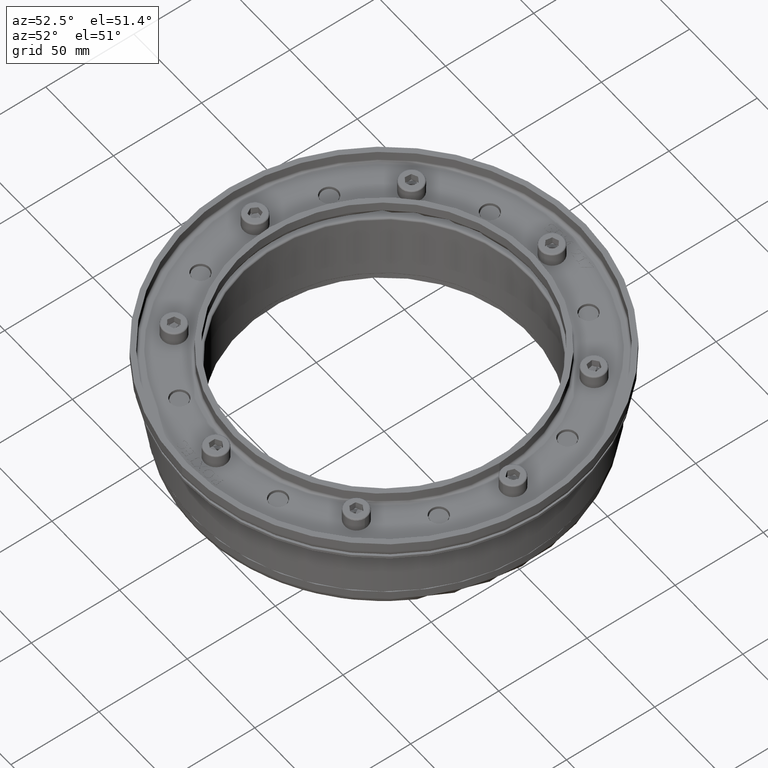
[diagram: clean part render]
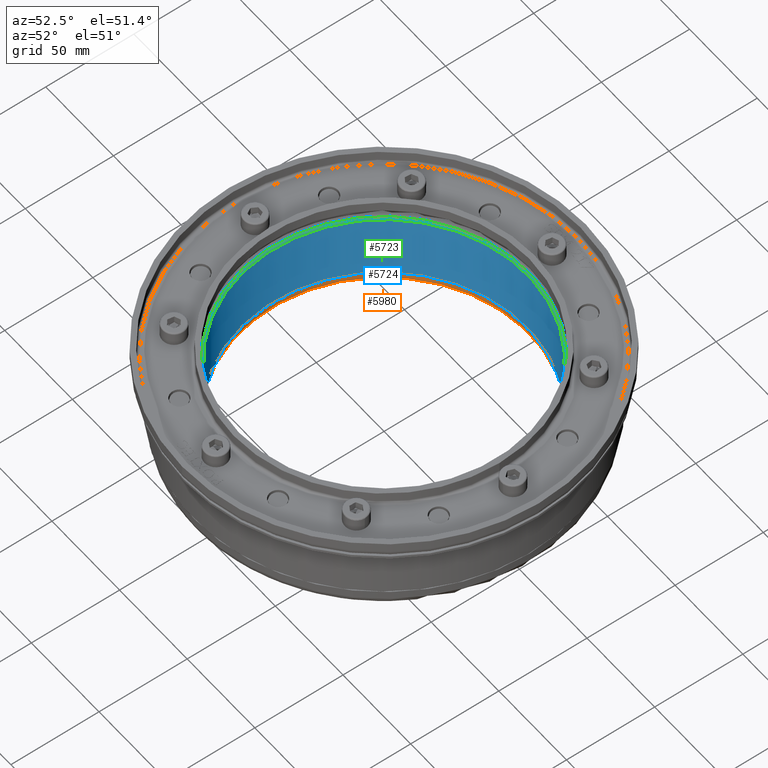
[diagram: same view with three faces highlighted in distinct colors, each labeled with its STEP entity id]
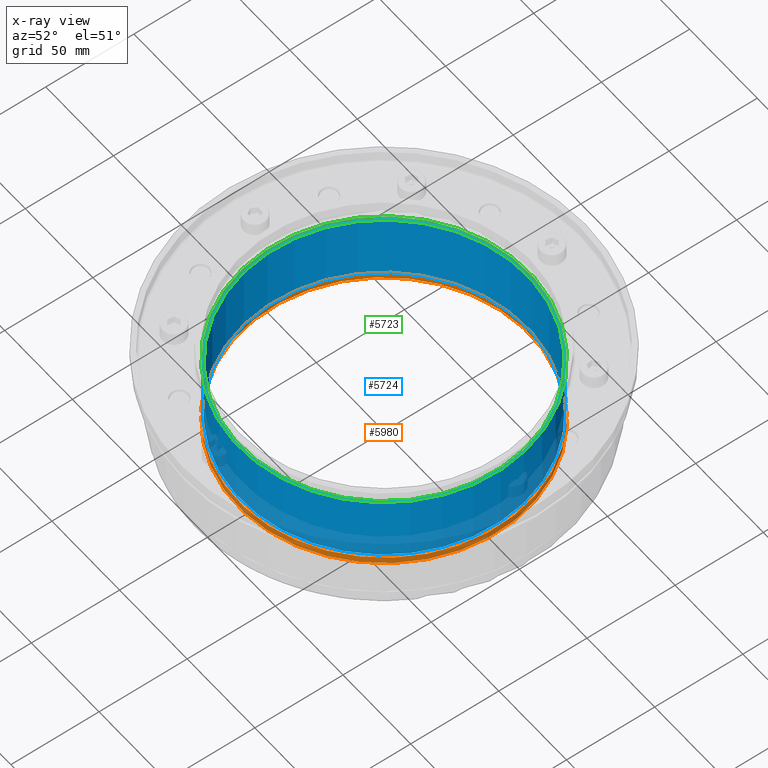
[diagram: x-ray of the same camera — body ghosted, the three highlighted faces saturated]
A machine part, auxiliary view with three faces highlighted in distinct colors.
The next image is the same camera in x-ray (body ghosted, the three faces saturated) — at least one of them is partly hidden behind the body in this view.
Their STEP definitions:

[orange] entity #5980 — the highlighted cylindrical surface (bore or boss wall) has radius 82.3 mm, axis along (0, 0, 1).
#616=CYLINDRICAL_SURFACE('',#6567,82.3);
#915=FACE_OUTER_BOUND('',#1325,.T.);
#1325=EDGE_LOOP('',(#5579,#5580,#5581,#5582));
#1783=LINE('',#10703,#2240);
#2240=VECTOR('',#7973,88.3);
#2480=CIRCLE('',#6555,82.3);
#2487=CIRCLE('',#6566,82.3);
#3053=VERTEX_POINT('',#10681);
#3059=VERTEX_POINT('',#10700);
#3896=EDGE_CURVE('',#3053,#3053,#2480,.F.);
#3905=EDGE_CURVE('',#3059,#3059,#2487,.T.);
#3906=EDGE_CURVE('',#3059,#3053,#1783,.T.);
#5579=ORIENTED_EDGE('',*,*,#3905,.T.);
#5580=ORIENTED_EDGE('',*,*,#3906,.T.);
#5581=ORIENTED_EDGE('',*,*,#3896,.F.);
#5582=ORIENTED_EDGE('',*,*,#3906,.F.);
#5980=ADVANCED_FACE('',(#915),#616,.F.);
#6555=AXIS2_PLACEMENT_3D('',#10682,#7945,#7946);
#6566=AXIS2_PLACEMENT_3D('',#10701,#7969,#7970);
#6567=AXIS2_PLACEMENT_3D('',#10702,#7971,#7972);
#7945=DIRECTION('center_axis',(3.48336438347503E-16,-1.,0.));
#7946=DIRECTION('ref_axis',(-1.,-3.51989990342365E-16,0.));
#7969=DIRECTION('center_axis',(-3.48336438347503E-16,1.,0.));
#7970=DIRECTION('ref_axis',(-1.,-3.51989990342365E-16,0.));
#7971=DIRECTION('center_axis',(-3.48336438347503E-16,1.,0.));
#7972=DIRECTION('ref_axis',(-1.,-3.51989990342365E-16,0.));
#7973=DIRECTION('',(3.48336438347503E-16,-1.,0.));
#10681=CARTESIAN_POINT('',(130.85,-3.99999999999994,1.00788431569827E-14));
#10682=CARTESIAN_POINT('Origin',(48.55,-3.99999999999996,0.));
#10700=CARTESIAN_POINT('',(130.85,6.1997911187775E-14,-1.00788431569827E-14));
#10701=CARTESIAN_POINT('Origin',(48.55,3.30291349825984E-14,0.));
#10702=CARTESIAN_POINT('Origin',(48.55,-1.99999999999997,0.));
#10703=CARTESIAN_POINT('',(130.85,-1.99999999999994,-1.00788431569827E-14));

[blue] entity #5724 — the highlighted cylindrical surface (bore or boss wall) has radius 81.3 mm, axis along (0, -0, 1).
#570=CYLINDRICAL_SURFACE('',#6263,81.3);
#659=FACE_OUTER_BOUND('',#981,.T.);
#981=EDGE_LOOP('',(#4196,#4197,#4198,#4199,#4200));
#1377=LINE('',#8381,#1834);
#1834=VECTOR('',#6961,81.3);
#2368=CIRCLE('',#6262,81.3);
#2369=CIRCLE('',#6264,81.3);
#2370=CIRCLE('',#6265,81.3);
#2612=VERTEX_POINT('',#8374);
#2613=VERTEX_POINT('',#8378);
#2614=VERTEX_POINT('',#8379);
#3234=EDGE_CURVE('',#2612,#2612,#2368,.T.);
#3235=EDGE_CURVE('',#2613,#2614,#2369,.T.);
#3236=EDGE_CURVE('',#2613,#2612,#1377,.T.);
#3237=EDGE_CURVE('',#2614,#2613,#2370,.T.);
#4196=ORIENTED_EDGE('',*,*,#3235,.F.);
#4197=ORIENTED_EDGE('',*,*,#3236,.T.);
#4198=ORIENTED_EDGE('',*,*,#3234,.F.);
#4199=ORIENTED_EDGE('',*,*,#3236,.F.);
#4200=ORIENTED_EDGE('',*,*,#3237,.F.);
#5724=ADVANCED_FACE('',(#659),#570,.F.);
#6262=AXIS2_PLACEMENT_3D('',#8376,#6955,#6956);
#6263=AXIS2_PLACEMENT_3D('',#8377,#6957,#6958);
#6264=AXIS2_PLACEMENT_3D('',#8380,#6959,#6960);
#6265=AXIS2_PLACEMENT_3D('',#8382,#6962,#6963);
#6955=DIRECTION('center_axis',(0.,0.,-1.));
#6956=DIRECTION('ref_axis',(-1.,0.,0.));
#6957=DIRECTION('center_axis',(0.,0.,1.));
#6958=DIRECTION('ref_axis',(-1.,0.,0.));
#6959=DIRECTION('center_axis',(0.,0.,1.));
#6960=DIRECTION('ref_axis',(-1.,0.,0.));
#6961=DIRECTION('',(0.,0.,1.));
#6962=DIRECTION('center_axis',(0.,0.,1.));
#6963=DIRECTION('ref_axis',(-1.,0.,0.));
#8374=CARTESIAN_POINT('',(81.3,-9.4012669647554E-15,39.));
#8376=CARTESIAN_POINT('Origin',(-5.55111512312578E-16,5.55111512312578E-16,
39.));
#8377=CARTESIAN_POINT('Origin',(-5.55111512312578E-16,5.55111512312578E-16,
0.));
#8378=CARTESIAN_POINT('',(81.3,1.05114899893806E-14,1.));
#8379=CARTESIAN_POINT('',(-81.3,-9.4012669647554E-15,1.));
#8380=CARTESIAN_POINT('Origin',(-5.55111512312578E-16,5.55111512312578E-16,
1.));
#8381=CARTESIAN_POINT('',(81.3,1.05114899893806E-14,0.));
#8382=CARTESIAN_POINT('Origin',(-5.55111512312578E-16,5.55111512312578E-16,
1.));

[green] entity #5723 — the highlighted toroidal blend (fillet) surface has major radius 82.3 mm and minor (blend) radius 1 mm.
#542=TOROIDAL_SURFACE('',#6259,82.3,1.);
#658=FACE_OUTER_BOUND('',#980,.T.);
#980=EDGE_LOOP('',(#4192,#4193,#4194,#4195));
#2366=CIRCLE('',#6260,82.3);
#2367=CIRCLE('',#6261,1.);
#2368=CIRCLE('',#6262,81.3);
#2611=VERTEX_POINT('',#8372);
#2612=VERTEX_POINT('',#8374);
#3232=EDGE_CURVE('',#2611,#2611,#2366,.T.);
#3233=EDGE_CURVE('',#2611,#2612,#2367,.T.);
#3234=EDGE_CURVE('',#2612,#2612,#2368,.T.);
#4192=ORIENTED_EDGE('',*,*,#3232,.T.);
#4193=ORIENTED_EDGE('',*,*,#3233,.T.);
#4194=ORIENTED_EDGE('',*,*,#3234,.T.);
#4195=ORIENTED_EDGE('',*,*,#3233,.F.);
#5723=ADVANCED_FACE('',(#658),#542,.T.);
#6259=AXIS2_PLACEMENT_3D('',#8371,#6949,#6950);
#6260=AXIS2_PLACEMENT_3D('',#8373,#6951,#6952);
#6261=AXIS2_PLACEMENT_3D('',#8375,#6953,#6954);
#6262=AXIS2_PLACEMENT_3D('',#8376,#6955,#6956);
#6949=DIRECTION('center_axis',(0.,0.,-1.));
#6950=DIRECTION('ref_axis',(-1.,0.,0.));
#6951=DIRECTION('center_axis',(0.,0.,1.));
#6952=DIRECTION('ref_axis',(-1.,0.,0.));
#6953=DIRECTION('center_axis',(-1.22464679914735E-16,-1.,0.));
#6954=DIRECTION('ref_axis',(1.,-1.22464679914735E-16,0.));
#6955=DIRECTION('center_axis',(0.,0.,-1.));
#6956=DIRECTION('ref_axis',(-1.,0.,0.));
#8371=CARTESIAN_POINT('Origin',(-5.55111512312578E-16,5.55111512312578E-16,
39.));
#8372=CARTESIAN_POINT('',(82.3,1.06339546692953E-14,40.));
#8373=CARTESIAN_POINT('Origin',(-5.55111512312578E-16,5.55111512312578E-16,
40.));
#8374=CARTESIAN_POINT('',(81.3,-9.4012669647554E-15,39.));
#8375=CARTESIAN_POINT('Origin',(82.3,-9.52373164467014E-15,39.));
#8376=CARTESIAN_POINT('Origin',(-5.55111512312578E-16,5.55111512312578E-16,
39.));